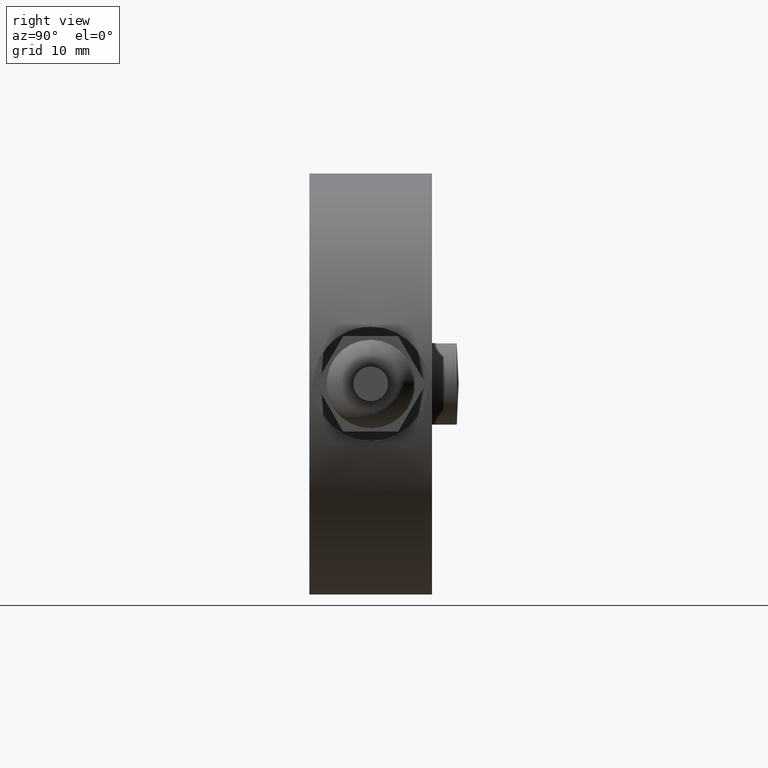
[diagram: clean part render]
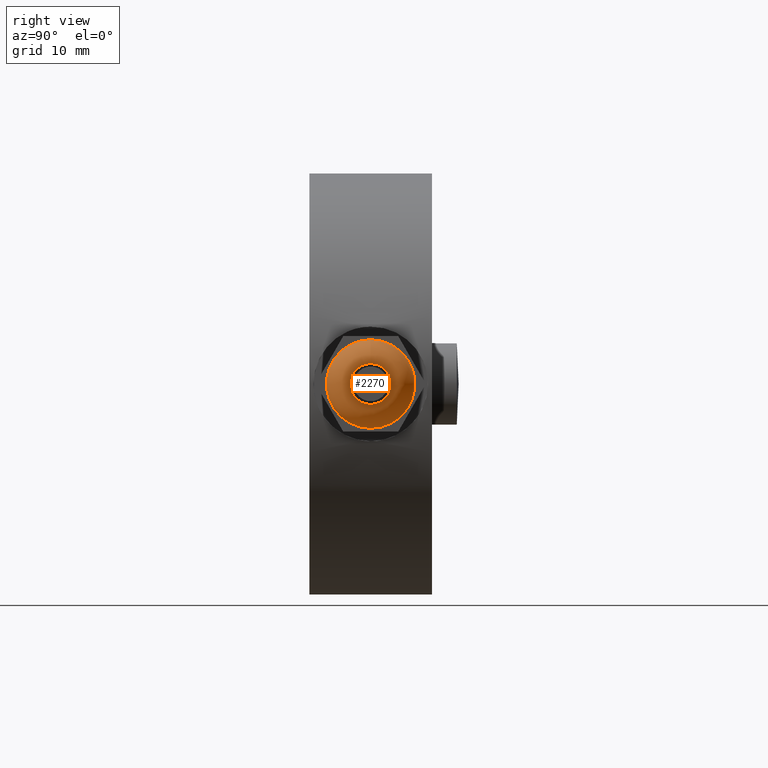
[diagram: same view with one face highlighted and labeled with its STEP entity id]
A machine part, right view. The second image highlights one B-rep face of the part: STEP entity #2270.
In plain terms, the highlighted face is a freeform B-spline surface patch.
Its self-contained STEP definition (entity closure, byte-faithful):
#225=(
BOUNDED_SURFACE()
B_SPLINE_SURFACE(2,2,((#3125,#3126,#3127,#3128,#3129,#3130,#3131,#3132,
#3133),(#3134,#3135,#3136,#3137,#3138,#3139,#3140,#3141,#3142),(#3143,#3144,
#3145,#3146,#3147,#3148,#3149,#3150,#3151)),.UNSPECIFIED.,.F.,.T.,.F.)
B_SPLINE_SURFACE_WITH_KNOTS((3,3),(3,2,2,2,3),(0.,1.5707963267949),(-3.14159265358979,
-1.5707963267949,0.,1.5707963267949,3.14159265358979),.UNSPECIFIED.)
GEOMETRIC_REPRESENTATION_ITEM()
RATIONAL_B_SPLINE_SURFACE(((1.,0.707106781186548,1.,0.707106781186548,1.,
0.707106781186548,1.,0.707106781186548,1.),(0.707106781186547,0.499999999999999,
0.707106781186547,0.499999999999999,0.707106781186547,0.499999999999999,
0.707106781186547,0.499999999999999,0.707106781186547),(1.,0.707106781186548,
1.,0.707106781186548,1.,0.707106781186548,1.,0.707106781186548,1.)))
REPRESENTATION_ITEM('')
SURFACE()
);
#257=FACE_OUTER_BOUND('',#400,.T.);
#400=EDGE_LOOP('',(#1463,#1464,#1465,#1466));
#824=CIRCLE('',#2433,3.);
#825=CIRCLE('',#2434,3.5);
#826=CIRCLE('',#2435,6.5);
#871=VERTEX_POINT('',#3152);
#872=VERTEX_POINT('',#3154);
#1103=EDGE_CURVE('',#871,#871,#824,.T.);
#1104=EDGE_CURVE('',#871,#872,#825,.T.);
#1105=EDGE_CURVE('',#872,#872,#826,.T.);
#1463=ORIENTED_EDGE('',*,*,#1103,.T.);
#1464=ORIENTED_EDGE('',*,*,#1104,.T.);
#1465=ORIENTED_EDGE('',*,*,#1105,.T.);
#1466=ORIENTED_EDGE('',*,*,#1104,.F.);
#2270=ADVANCED_FACE('',(#257),#225,.F.);
#2433=AXIS2_PLACEMENT_3D('',#3153,#2629,#2630);
#2434=AXIS2_PLACEMENT_3D('',#3155,#2631,#2632);
#2435=AXIS2_PLACEMENT_3D('',#3156,#2633,#2634);
#2629=DIRECTION('center_axis',(-1.,0.,0.));
#2630=DIRECTION('ref_axis',(0.,0.,-1.));
#2631=DIRECTION('center_axis',(0.,-1.,-1.22464679914735E-16));
#2632=DIRECTION('ref_axis',(0.,-1.22464679914735E-16,1.));
#2633=DIRECTION('center_axis',(1.,0.,0.));
#2634=DIRECTION('ref_axis',(0.,0.,-1.));
#3125=CARTESIAN_POINT('Ctrl Pts',(12.5,0.,6.5));
#3126=CARTESIAN_POINT('Ctrl Pts',(12.5,-6.5,6.5));
#3127=CARTESIAN_POINT('Ctrl Pts',(12.5,-6.5,0.));
#3128=CARTESIAN_POINT('Ctrl Pts',(12.5,-6.5,-6.5));
#3129=CARTESIAN_POINT('Ctrl Pts',(12.5,0.,-6.5));
#3130=CARTESIAN_POINT('Ctrl Pts',(12.5,6.5,-6.5));
#3131=CARTESIAN_POINT('Ctrl Pts',(12.5,6.5,0.));
#3132=CARTESIAN_POINT('Ctrl Pts',(12.5,6.5,6.5));
#3133=CARTESIAN_POINT('Ctrl Pts',(12.5,0.,6.5));
#3134=CARTESIAN_POINT('Ctrl Pts',(16.,0.,6.5));
#3135=CARTESIAN_POINT('Ctrl Pts',(16.,-6.5,6.5));
#3136=CARTESIAN_POINT('Ctrl Pts',(16.,-6.5,0.));
#3137=CARTESIAN_POINT('Ctrl Pts',(16.,-6.5,-6.5));
#3138=CARTESIAN_POINT('Ctrl Pts',(16.,0.,-6.5));
#3139=CARTESIAN_POINT('Ctrl Pts',(16.,6.5,-6.5));
#3140=CARTESIAN_POINT('Ctrl Pts',(16.,6.5,0.));
#3141=CARTESIAN_POINT('Ctrl Pts',(16.,6.5,6.5));
#3142=CARTESIAN_POINT('Ctrl Pts',(16.,0.,6.5));
#3143=CARTESIAN_POINT('Ctrl Pts',(16.,0.,3.));
#3144=CARTESIAN_POINT('Ctrl Pts',(16.,-3.,3.));
#3145=CARTESIAN_POINT('Ctrl Pts',(16.,-3.,0.));
#3146=CARTESIAN_POINT('Ctrl Pts',(16.,-3.,-3.));
#3147=CARTESIAN_POINT('Ctrl Pts',(16.,0.,-3.));
#3148=CARTESIAN_POINT('Ctrl Pts',(16.,3.,-3.));
#3149=CARTESIAN_POINT('Ctrl Pts',(16.,3.,0.));
#3150=CARTESIAN_POINT('Ctrl Pts',(16.,3.,3.));
#3151=CARTESIAN_POINT('Ctrl Pts',(16.,0.,3.));
#3152=CARTESIAN_POINT('',(16.,3.67394039744206E-16,3.));
#3153=CARTESIAN_POINT('Origin',(16.,0.,0.));
#3154=CARTESIAN_POINT('',(12.5,-7.9602041944578E-16,6.5));
#3155=CARTESIAN_POINT('Origin',(12.5,-3.67394039744206E-16,3.));
#3156=CARTESIAN_POINT('Origin',(12.5,0.,0.));